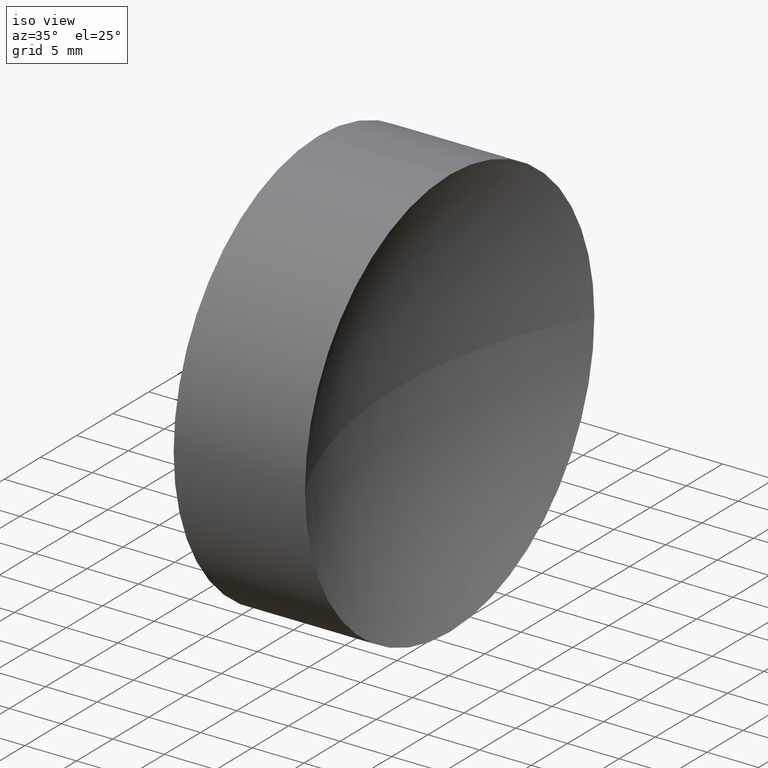
[diagram: clean part render]
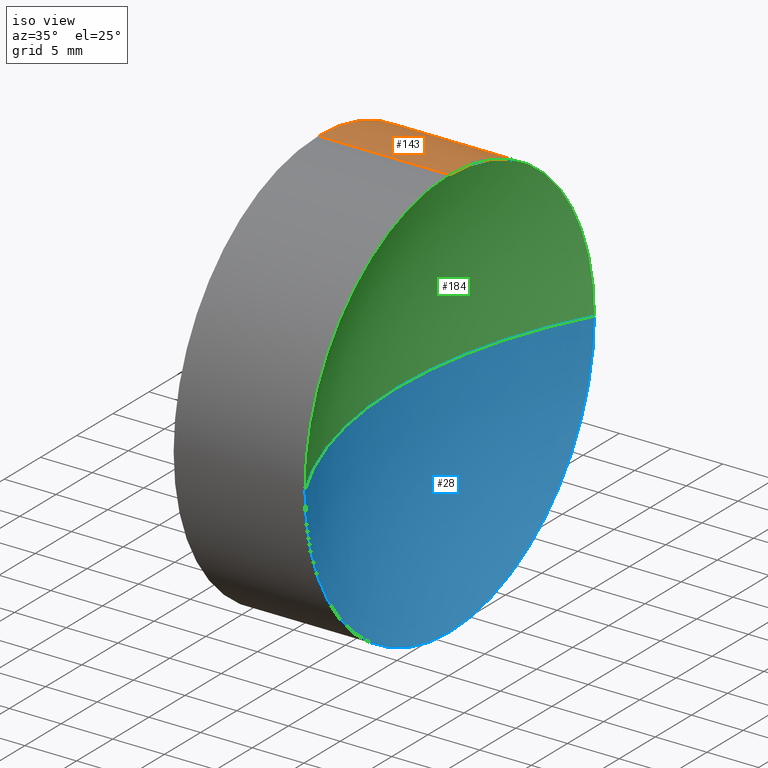
[diagram: same view with three faces highlighted in distinct colors, each labeled with its STEP entity id]
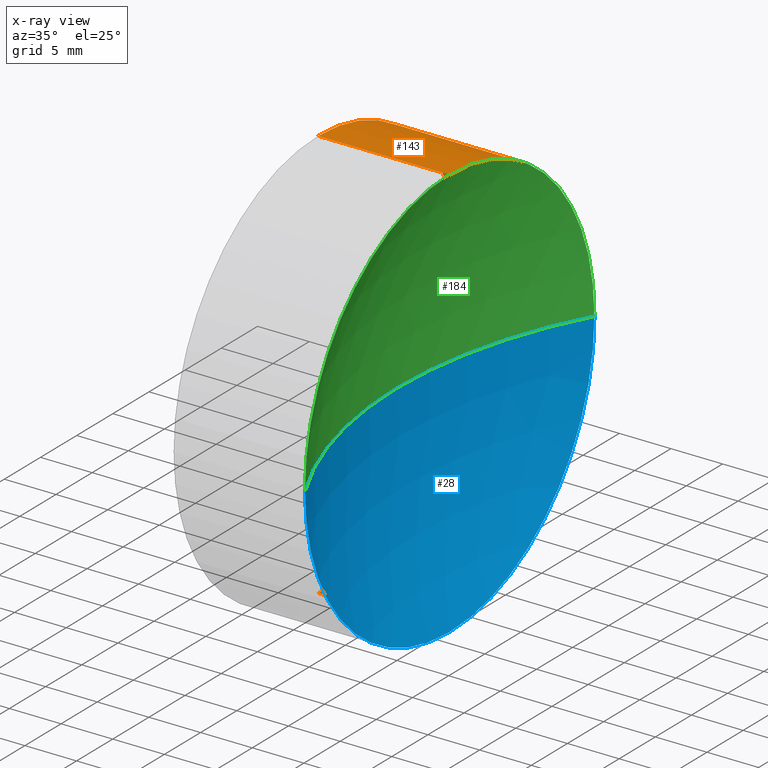
[diagram: x-ray of the same camera — body ghosted, the three highlighted faces saturated]
A machine part, iso view with three faces highlighted in distinct colors.
The next image is the same camera in x-ray (body ghosted, the three faces saturated) — at least one of them is partly hidden behind the body in this view.
Their STEP definitions:

[orange] entity #143 — the highlighted cylindrical surface (partial cylindrical patch) has radius 20 mm, axis along (-1, -0, -0).
#2 = LINE ( 'NONE', #26, #125 ) ;
#7 = AXIS2_PLACEMENT_3D ( 'NONE', #191, #171, #50 ) ;
#20 = ORIENTED_EDGE ( 'NONE', *, *, #79, .T. ) ;
#21 = CIRCLE ( 'NONE', #226, 20.00000000000000400 ) ;
#26 = CARTESIAN_POINT ( 'NONE',  ( 106.1246527853420500, 65.22260287298739500, -20.00000000000000400 ) ) ;
#27 = DIRECTION ( 'NONE',  ( -1.000000000000000000, -0.0000000000000000000, -0.0000000000000000000 ) ) ;
#48 = VERTEX_POINT ( 'NONE', #113 ) ;
#50 = DIRECTION ( 'NONE',  ( 0.0000000000000000000, 0.0000000000000000000, 1.000000000000000000 ) ) ;
#55 = VERTEX_POINT ( 'NONE', #78 ) ;
#56 = CIRCLE ( 'NONE', #147, 20.00000000000000400 ) ;
#60 = DIRECTION ( 'NONE',  ( -1.000000000000000000, -0.0000000000000000000, -0.0000000000000000000 ) ) ;
#62 = VECTOR ( 'NONE', #60, 1000.000000000000000 ) ;
#64 = ORIENTED_EDGE ( 'NONE', *, *, #231, .F. ) ;
#65 = DIRECTION ( 'NONE',  ( -1.000000000000000000, -0.0000000000000000000, -0.0000000000000000000 ) ) ;
#67 = ORIENTED_EDGE ( 'NONE', *, *, #166, .T. ) ;
#70 = EDGE_CURVE ( 'NONE', #116, #112, #21, .T. ) ;
#71 = ORIENTED_EDGE ( 'NONE', *, *, #94, .T. ) ;
#77 = FACE_OUTER_BOUND ( 'NONE', #91, .T. ) ;
#78 = CARTESIAN_POINT ( 'NONE',  ( 126.4445069857047500, 65.22260287298739500, -20.00000000000000400 ) ) ;
#79 = EDGE_CURVE ( 'NONE', #55, #112, #2, .T. ) ;
#91 = EDGE_LOOP ( 'NONE', ( #67, #20, #159, #64, #127, #71 ) ) ;
#92 = DIRECTION ( 'NONE',  ( 0.0000000000000000000, 0.0000000000000000000, 1.000000000000000000 ) ) ;
#94 = EDGE_CURVE ( 'NONE', #105, #48, #205, .T. ) ;
#102 = EDGE_CURVE ( 'NONE', #105, #192, #198, .T. ) ;
#105 = VERTEX_POINT ( 'NONE', #186 ) ;
#112 = VERTEX_POINT ( 'NONE', #148 ) ;
#113 = CARTESIAN_POINT ( 'NONE',  ( 126.4445069857047500, 85.22260287298740900, 2.449293598294707300E-015 ) ) ;
#116 = VERTEX_POINT ( 'NONE', #117 ) ;
#117 = CARTESIAN_POINT ( 'NONE',  ( 113.7373559817687900, 85.22260287298739500, 0.0000000000000000000 ) ) ;
#125 = VECTOR ( 'NONE', #160, 1000.000000000000000 ) ;
#127 = ORIENTED_EDGE ( 'NONE', *, *, #102, .F. ) ;
#134 = CARTESIAN_POINT ( 'NONE',  ( 113.7373559817687900, 65.22260287298739500, 0.0000000000000000000 ) ) ;
#140 = CIRCLE ( 'NONE', #163, 20.00000000000000400 ) ;
#143 = ADVANCED_FACE ( 'NONE', ( #77 ), #145, .T. ) ;
#144 = DIRECTION ( 'NONE',  ( 0.0000000000000000000, 0.0000000000000000000, 1.000000000000000000 ) ) ;
#145 = CYLINDRICAL_SURFACE ( 'NONE', #7, 20.00000000000000400 ) ;
#147 = AXIS2_PLACEMENT_3D ( 'NONE', #134, #65, #209 ) ;
#148 = CARTESIAN_POINT ( 'NONE',  ( 113.7373559817687900, 65.22260287298739500, -20.00000000000000400 ) ) ;
#159 = ORIENTED_EDGE ( 'NONE', *, *, #70, .F. ) ;
#160 = DIRECTION ( 'NONE',  ( -1.000000000000000000, -0.0000000000000000000, -0.0000000000000000000 ) ) ;
#161 = CARTESIAN_POINT ( 'NONE',  ( 126.4445069857047500, 65.22260287298739500, 0.0000000000000000000 ) ) ;
#163 = AXIS2_PLACEMENT_3D ( 'NONE', #169, #229, #92 ) ;
#166 = EDGE_CURVE ( 'NONE', #48, #55, #140, .T. ) ;
#167 = DIRECTION ( 'NONE',  ( 0.0000000000000000000, 0.0000000000000000000, 1.000000000000000000 ) ) ;
#169 = CARTESIAN_POINT ( 'NONE',  ( 126.4445069857047500, 65.22260287298739500, 0.0000000000000000000 ) ) ;
#171 = DIRECTION ( 'NONE',  ( -1.000000000000000000, -0.0000000000000000000, -0.0000000000000000000 ) ) ;
#180 = DIRECTION ( 'NONE',  ( -1.000000000000000000, -0.0000000000000000000, -0.0000000000000000000 ) ) ;
#183 = CARTESIAN_POINT ( 'NONE',  ( 113.7373559817687900, 65.22260287298739500, 0.0000000000000000000 ) ) ;
#186 = CARTESIAN_POINT ( 'NONE',  ( 126.4445069857047500, 65.22260287298739500, 20.00000000000000400 ) ) ;
#187 = AXIS2_PLACEMENT_3D ( 'NONE', #161, #180, #167 ) ;
#191 = CARTESIAN_POINT ( 'NONE',  ( 106.1246527853420500, 65.22260287298739500, 0.0000000000000000000 ) ) ;
#192 = VERTEX_POINT ( 'NONE', #210 ) ;
#198 = LINE ( 'NONE', #200, #62 ) ;
#200 = CARTESIAN_POINT ( 'NONE',  ( 106.1246527853420500, 65.22260287298739500, 20.00000000000000400 ) ) ;
#205 = CIRCLE ( 'NONE', #187, 20.00000000000000400 ) ;
#209 = DIRECTION ( 'NONE',  ( 0.0000000000000000000, 0.0000000000000000000, 1.000000000000000000 ) ) ;
#210 = CARTESIAN_POINT ( 'NONE',  ( 113.7373559817687900, 65.22260287298739500, 20.00000000000000400 ) ) ;
#226 = AXIS2_PLACEMENT_3D ( 'NONE', #183, #27, #144 ) ;
#229 = DIRECTION ( 'NONE',  ( -1.000000000000000000, -0.0000000000000000000, -0.0000000000000000000 ) ) ;
#231 = EDGE_CURVE ( 'NONE', #192, #116, #56, .T. ) ;

[blue] entity #28 — the highlighted spherical surface has radius 41.74 mm.
#8 = SPHERICAL_SURFACE ( 'NONE', #23, 41.74000000000003000 ) ;
#9 = AXIS2_PLACEMENT_3D ( 'NONE', #86, #30, #120 ) ;
#10 = CARTESIAN_POINT ( 'NONE',  ( 121.3409314837367500, 65.22260287298739500, 0.0000000000000000000 ) ) ;
#11 = ORIENTED_EDGE ( 'NONE', *, *, #83, .F. ) ;
#15 = EDGE_CURVE ( 'NONE', #48, #203, #57, .T. ) ;
#23 = AXIS2_PLACEMENT_3D ( 'NONE', #220, #202, #165 ) ;
#28 = ADVANCED_FACE ( 'NONE', ( #69 ), #8, .F. ) ;
#30 = DIRECTION ( 'NONE',  ( -1.000000000000000000, -0.0000000000000000000, -0.0000000000000000000 ) ) ;
#39 = DIRECTION ( 'NONE',  ( 0.0000000000000000000, 0.0000000000000000000, -1.000000000000000000 ) ) ;
#47 = VERTEX_POINT ( 'NONE', #178 ) ;
#48 = VERTEX_POINT ( 'NONE', #113 ) ;
#55 = VERTEX_POINT ( 'NONE', #78 ) ;
#57 = CIRCLE ( 'NONE', #217, 41.74000000000003000 ) ;
#59 = CARTESIAN_POINT ( 'NONE',  ( 163.0809314837367800, 65.22260287298739500, 0.0000000000000000000 ) ) ;
#69 = FACE_OUTER_BOUND ( 'NONE', #197, .T. ) ;
#78 = CARTESIAN_POINT ( 'NONE',  ( 126.4445069857047500, 65.22260287298739500, -20.00000000000000400 ) ) ;
#83 = EDGE_CURVE ( 'NONE', #47, #203, #150, .T. ) ;
#86 = CARTESIAN_POINT ( 'NONE',  ( 126.4445069857047500, 65.22260287298739500, 0.0000000000000000000 ) ) ;
#92 = DIRECTION ( 'NONE',  ( 0.0000000000000000000, 0.0000000000000000000, 1.000000000000000000 ) ) ;
#101 = DIRECTION ( 'NONE',  ( 0.0000000000000000000, -1.224646799147353200E-016, 1.000000000000000000 ) ) ;
#104 = ORIENTED_EDGE ( 'NONE', *, *, #232, .F. ) ;
#107 = ORIENTED_EDGE ( 'NONE', *, *, #15, .T. ) ;
#113 = CARTESIAN_POINT ( 'NONE',  ( 126.4445069857047500, 85.22260287298740900, 2.449293598294707300E-015 ) ) ;
#120 = DIRECTION ( 'NONE',  ( 0.0000000000000000000, 0.0000000000000000000, 1.000000000000000000 ) ) ;
#140 = CIRCLE ( 'NONE', #163, 20.00000000000000400 ) ;
#150 = CIRCLE ( 'NONE', #174, 41.74000000000003000 ) ;
#163 = AXIS2_PLACEMENT_3D ( 'NONE', #169, #229, #92 ) ;
#165 = DIRECTION ( 'NONE',  ( 0.0000000000000000000, -1.000000000000000000, 0.0000000000000000000 ) ) ;
#166 = EDGE_CURVE ( 'NONE', #48, #55, #140, .T. ) ;
#169 = CARTESIAN_POINT ( 'NONE',  ( 126.4445069857047500, 65.22260287298739500, 0.0000000000000000000 ) ) ;
#173 = ORIENTED_EDGE ( 'NONE', *, *, #166, .F. ) ;
#174 = AXIS2_PLACEMENT_3D ( 'NONE', #221, #39, #179 ) ;
#178 = CARTESIAN_POINT ( 'NONE',  ( 126.4445069857047500, 45.22260287298739500, 0.0000000000000000000 ) ) ;
#179 = DIRECTION ( 'NONE',  ( -1.000000000000000000, 0.0000000000000000000, 0.0000000000000000000 ) ) ;
#197 = EDGE_LOOP ( 'NONE', ( #173, #107, #11, #104 ) ) ;
#201 = DIRECTION ( 'NONE',  ( 0.0000000000000000000, -1.000000000000000000, -1.224646799147353000E-016 ) ) ;
#202 = DIRECTION ( 'NONE',  ( 0.0000000000000000000, 0.0000000000000000000, 1.000000000000000000 ) ) ;
#203 = VERTEX_POINT ( 'NONE', #10 ) ;
#217 = AXIS2_PLACEMENT_3D ( 'NONE', #59, #101, #201 ) ;
#218 = CIRCLE ( 'NONE', #9, 20.00000000000000400 ) ;
#220 = CARTESIAN_POINT ( 'NONE',  ( 163.0809314837367800, 65.22260287298739500, 0.0000000000000000000 ) ) ;
#221 = CARTESIAN_POINT ( 'NONE',  ( 163.0809314837367800, 65.22260287298739500, 0.0000000000000000000 ) ) ;
#229 = DIRECTION ( 'NONE',  ( -1.000000000000000000, -0.0000000000000000000, -0.0000000000000000000 ) ) ;
#232 = EDGE_CURVE ( 'NONE', #55, #47, #218, .T. ) ;

[green] entity #184 — the highlighted spherical surface has radius 41.74 mm.
#10 = CARTESIAN_POINT ( 'NONE',  ( 121.3409314837367500, 65.22260287298739500, 0.0000000000000000000 ) ) ;
#14 = DIRECTION ( 'NONE',  ( 0.0000000000000000000, -1.000000000000000000, 0.0000000000000000000 ) ) ;
#15 = EDGE_CURVE ( 'NONE', #48, #203, #57, .T. ) ;
#24 = CIRCLE ( 'NONE', #122, 20.00000000000000400 ) ;
#35 = SPHERICAL_SURFACE ( 'NONE', #73, 41.74000000000003000 ) ;
#39 = DIRECTION ( 'NONE',  ( 0.0000000000000000000, 0.0000000000000000000, -1.000000000000000000 ) ) ;
#42 = DIRECTION ( 'NONE',  ( 0.0000000000000000000, 0.0000000000000000000, 1.000000000000000000 ) ) ;
#43 = CARTESIAN_POINT ( 'NONE',  ( 163.0809314837367800, 65.22260287298739500, 0.0000000000000000000 ) ) ;
#47 = VERTEX_POINT ( 'NONE', #178 ) ;
#48 = VERTEX_POINT ( 'NONE', #113 ) ;
#57 = CIRCLE ( 'NONE', #217, 41.74000000000003000 ) ;
#59 = CARTESIAN_POINT ( 'NONE',  ( 163.0809314837367800, 65.22260287298739500, 0.0000000000000000000 ) ) ;
#72 = ORIENTED_EDGE ( 'NONE', *, *, #94, .F. ) ;
#73 = AXIS2_PLACEMENT_3D ( 'NONE', #43, #90, #14 ) ;
#83 = EDGE_CURVE ( 'NONE', #47, #203, #150, .T. ) ;
#90 = DIRECTION ( 'NONE',  ( 0.0000000000000000000, 0.0000000000000000000, 1.000000000000000000 ) ) ;
#94 = EDGE_CURVE ( 'NONE', #105, #48, #205, .T. ) ;
#101 = DIRECTION ( 'NONE',  ( 0.0000000000000000000, -1.224646799147353200E-016, 1.000000000000000000 ) ) ;
#105 = VERTEX_POINT ( 'NONE', #186 ) ;
#108 = EDGE_CURVE ( 'NONE', #47, #105, #24, .T. ) ;
#113 = CARTESIAN_POINT ( 'NONE',  ( 126.4445069857047500, 85.22260287298740900, 2.449293598294707300E-015 ) ) ;
#122 = AXIS2_PLACEMENT_3D ( 'NONE', #230, #212, #42 ) ;
#142 = ORIENTED_EDGE ( 'NONE', *, *, #83, .T. ) ;
#150 = CIRCLE ( 'NONE', #174, 41.74000000000003000 ) ;
#161 = CARTESIAN_POINT ( 'NONE',  ( 126.4445069857047500, 65.22260287298739500, 0.0000000000000000000 ) ) ;
#167 = DIRECTION ( 'NONE',  ( 0.0000000000000000000, 0.0000000000000000000, 1.000000000000000000 ) ) ;
#174 = AXIS2_PLACEMENT_3D ( 'NONE', #221, #39, #179 ) ;
#178 = CARTESIAN_POINT ( 'NONE',  ( 126.4445069857047500, 45.22260287298739500, 0.0000000000000000000 ) ) ;
#179 = DIRECTION ( 'NONE',  ( -1.000000000000000000, 0.0000000000000000000, 0.0000000000000000000 ) ) ;
#180 = DIRECTION ( 'NONE',  ( -1.000000000000000000, -0.0000000000000000000, -0.0000000000000000000 ) ) ;
#181 = ORIENTED_EDGE ( 'NONE', *, *, #108, .F. ) ;
#184 = ADVANCED_FACE ( 'NONE', ( #215 ), #35, .F. ) ;
#186 = CARTESIAN_POINT ( 'NONE',  ( 126.4445069857047500, 65.22260287298739500, 20.00000000000000400 ) ) ;
#187 = AXIS2_PLACEMENT_3D ( 'NONE', #161, #180, #167 ) ;
#189 = EDGE_LOOP ( 'NONE', ( #196, #72, #181, #142 ) ) ;
#196 = ORIENTED_EDGE ( 'NONE', *, *, #15, .F. ) ;
#201 = DIRECTION ( 'NONE',  ( 0.0000000000000000000, -1.000000000000000000, -1.224646799147353000E-016 ) ) ;
#203 = VERTEX_POINT ( 'NONE', #10 ) ;
#205 = CIRCLE ( 'NONE', #187, 20.00000000000000400 ) ;
#212 = DIRECTION ( 'NONE',  ( -1.000000000000000000, -0.0000000000000000000, -0.0000000000000000000 ) ) ;
#215 = FACE_OUTER_BOUND ( 'NONE', #189, .T. ) ;
#217 = AXIS2_PLACEMENT_3D ( 'NONE', #59, #101, #201 ) ;
#221 = CARTESIAN_POINT ( 'NONE',  ( 163.0809314837367800, 65.22260287298739500, 0.0000000000000000000 ) ) ;
#230 = CARTESIAN_POINT ( 'NONE',  ( 126.4445069857047500, 65.22260287298739500, 0.0000000000000000000 ) ) ;